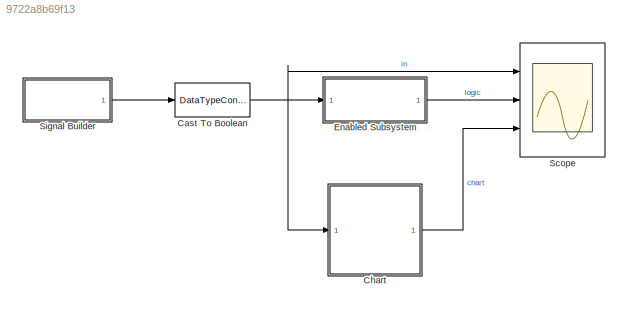
MODEL slx_9722a8b69f13
KIND model
CONFIG AbsTol = auto
CONFIG EnableMultiTasking = off
CONFIG FixedStep = 1
CONFIG MaxStep = auto
CONFIG MinStep = auto
CONFIG RelTol = 1e-3
CONFIG SampleTimeConstraint = Unconstrained
CONFIG Solver = FixedStepDiscrete
CONFIG SolverName = FixedStepDiscrete
CONFIG StartTime = 0.0
CONFIG StopTime = 40.0
BLOCK [DataTypeConversion] Cast To Boolean
  OutDataTypeStr = boolean
  RndMeth = Floor
  SaturateOnIntegerOverflow = off
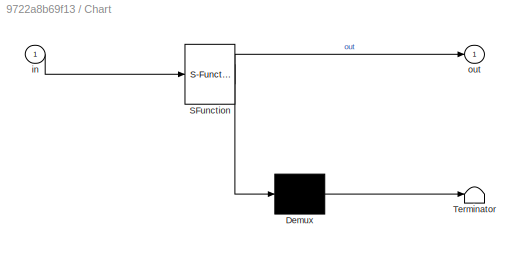
BLOCK [SubSystem] Chart
  ErrorFcn = Stateflow.Translate.translate
  PermitHierarchicalResolution = ExplicitOnly
  Ports = [1, 1]
  RequestExecContextInheritance = off
  SFBlockType = Chart
  TreatAsAtomicUnit = on
BLOCK [Demux] Chart/ Demux 
  Outputs = 1
  Ports = [1, 1]
BLOCK [S-Function] Chart/ SFunction 
  EnableBusSupport = on
  FunctionName = sf_sfun
  PortCounts = [1 2]
  Ports = [1, 2]
  SFcnIsStateOwnerBlock = off
  SFunctionDeploymentMode = off
  Tag = Stateflow S-Function Absolute_Time_Temporal_Logic 3
BLOCK [Terminator] Chart/ Terminator 
BLOCK [Inport] Chart/in
  IconDisplay = Port number
BLOCK [Outport] Chart/out
  IconDisplay = Port number
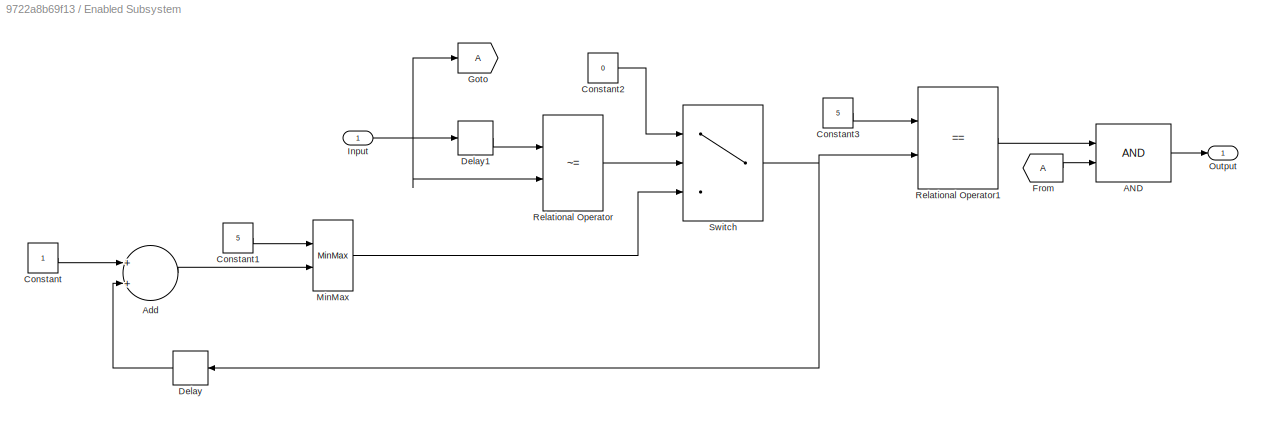
BLOCK [SubSystem] Enabled Subsystem
  Ports = [1, 1]
  RequestExecContextInheritance = off
  TreatAsAtomicUnit = on
BLOCK [Logic] Enabled Subsystem/AND
  AllPortsSameDT = off
  IconShape = distinctive
  OutDataTypeStr = boolean
  Ports = [2, 1]
BLOCK [Sum] Enabled Subsystem/Add
  InputSameDT = off
  OutDataTypeStr = Inherit: Inherit via internal rule
  Ports = [2, 1]
  SaturateOnIntegerOverflow = off
BLOCK [Constant] Enabled Subsystem/Constant
BLOCK [Constant] Enabled Subsystem/Constant1
  Value = 5
BLOCK [Constant] Enabled Subsystem/Constant2
  Value = 0
BLOCK [Constant] Enabled Subsystem/Constant3
  Value = 5
BLOCK [Delay] Enabled Subsystem/Delay
  DelayLength = 1
  InputPortMap = u0
  Ports = [1, 1]
BLOCK [Delay] Enabled Subsystem/Delay1
  DelayLength = 1
  InputPortMap = u0
  Ports = [1, 1]
BLOCK [From] Enabled Subsystem/From
BLOCK [Goto] Enabled Subsystem/Goto
BLOCK [Inport] Enabled Subsystem/Input
  IconDisplay = Port number
BLOCK [MinMax] Enabled Subsystem/MinMax
  InputSameDT = off
  Inputs = 2
  Ports = [2, 1]
  SaturateOnIntegerOverflow = off
BLOCK [Outport] Enabled Subsystem/Output
  IconDisplay = Port number
BLOCK [RelationalOperator] Enabled Subsystem/Relational Operator
  InputSameDT = off
  Operator = ~=
  OutDataTypeStr = boolean
  Ports = [2, 1]
  RndMeth = Simplest
BLOCK [RelationalOperator] Enabled Subsystem/Relational Operator1
  InputSameDT = off
  Operator = ==
  OutDataTypeStr = boolean
  Ports = [2, 1]
  RndMeth = Simplest
BLOCK [Switch] Enabled Subsystem/Switch
  Criteria = u2 ~= 0
  InputSameDT = off
  SaturateOnIntegerOverflow = off
  Threshold = 5
BLOCK [Scope] Scope
  Floating = off
  NumInputPorts = 3
  Ports = [3]
  ScopeSpecificationString = Simulink.scopes.TimeScopeBlockCfg('CurrentConfiguration', extmgr.ConfigurationSet(extmgr.Configuration('Core','General UI',true),extmgr.Configuration('Core','Source UI',true),extmgr.Configuration('Sources','WiredSimulink',true),extmgr.Configuration('Visuals','Time Domain',true,'SerializedDisplays',{struct('MinYLimReal','-0.125','MaxYLimReal','1.125','YLabelReal','','MinYLimMag','0.00000','MaxYLimM...<+2728ch>
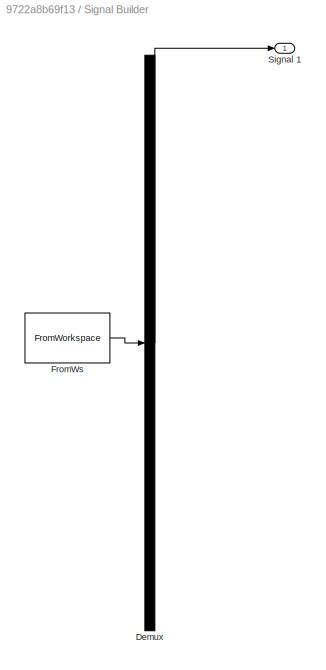
BLOCK [SubSystem] Signal Builder
  ClipboardFcn = sigbuilder_block('clipboard');
  CloseFcn = sigbuilder_block('close');
  ContinueFcn = sigbuilder_block('continue');
  CopyFcn = sigbuilder_block('copy');
  DeleteFcn = sigbuilder_block('delete');
  LoadFcn = sigbuilder_block('load');
  MaskHideContents = on
  ModelCloseFcn = sigbuilder_block('modelClose');
  NameChangeFcn = sigbuilder_block('namechange');
  OpenFcn = sigbuilder_block('open',[369 79.5 565.5 358.5 ]);
  PauseFcn = sigbuilder_block('pause');
  Ports = [0, 1]
  PreSaveFcn = sigbuilder_block('preSave');
  RequestExecContextInheritance = off
  StartFcn = sigbuilder_block('start');
  StopFcn = sigbuilder_block('stop');
  Tag = STV Subsys
BLOCK [Demux] Signal Builder/Demux
  Outputs = 1
  Ports = [1, 1]
  Tag = STV Demux
BLOCK [FromWorkspace] Signal Builder/FromWs
  SampleTime = 0
  Tag = STV FromWs
  VariableName = tuvar
  ZeroCross = on
BLOCK [Outport] Signal Builder/Signal 1
  IconDisplay = Port number
  Tag = STV Outport
NET Cast To Boolean:1 -> Chart:1, Enabled Subsystem:1, Scope:1
LINE Chart:1 -> Scope:3
LINE Enabled Subsystem/AND:1 -> Enabled Subsystem/Output:1
LINE Enabled Subsystem/Add:1 -> Enabled Subsystem/MinMax:2
LINE Enabled Subsystem/Constant1:1 -> Enabled Subsystem/MinMax:1
LINE Enabled Subsystem/Constant2:1 -> Enabled Subsystem/Switch:1
LINE Enabled Subsystem/Constant3:1 -> Enabled Subsystem/Relational Operator1:1
LINE Enabled Subsystem/Constant:1 -> Enabled Subsystem/Add:1
LINE Enabled Subsystem/Delay1:1 -> Enabled Subsystem/Relational Operator:1
LINE Enabled Subsystem/Delay:1 -> Enabled Subsystem/Add:2
LINE Enabled Subsystem/From:1 -> Enabled Subsystem/AND:2
NET Enabled Subsystem/Input:1 -> Enabled Subsystem/Delay1:1, Enabled Subsystem/Goto:1, Enabled Subsystem/Relational Operator:2
LINE Enabled Subsystem/MinMax:1 -> Enabled Subsystem/Switch:3
LINE Enabled Subsystem/Relational Operator1:1 -> Enabled Subsystem/AND:1
LINE Enabled Subsystem/Relational Operator:1 -> Enabled Subsystem/Switch:2
NET Enabled Subsystem/Switch:1 -> Enabled Subsystem/Delay:1, Enabled Subsystem/Relational Operator1:2
LINE Enabled Subsystem:1 -> Scope:2
LINE Signal Builder:1 -> Cast To Boolean:1
note: NET lines group one-source signal fan-out (src -> all destinations, sorted); 1:1 wires keep LINE
CHART Chart states=2 transitions=3
  STATE_LABEL 'def\nen: out = false;'
  STATE_LABEL 'state2\non after(5, sec):\nout = true;'
